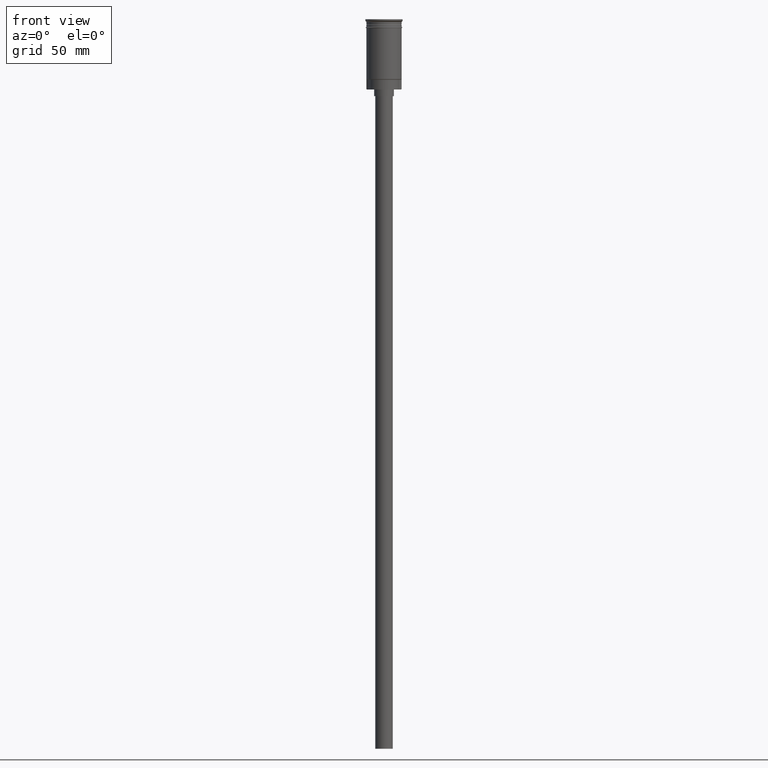
[diagram: clean part render]
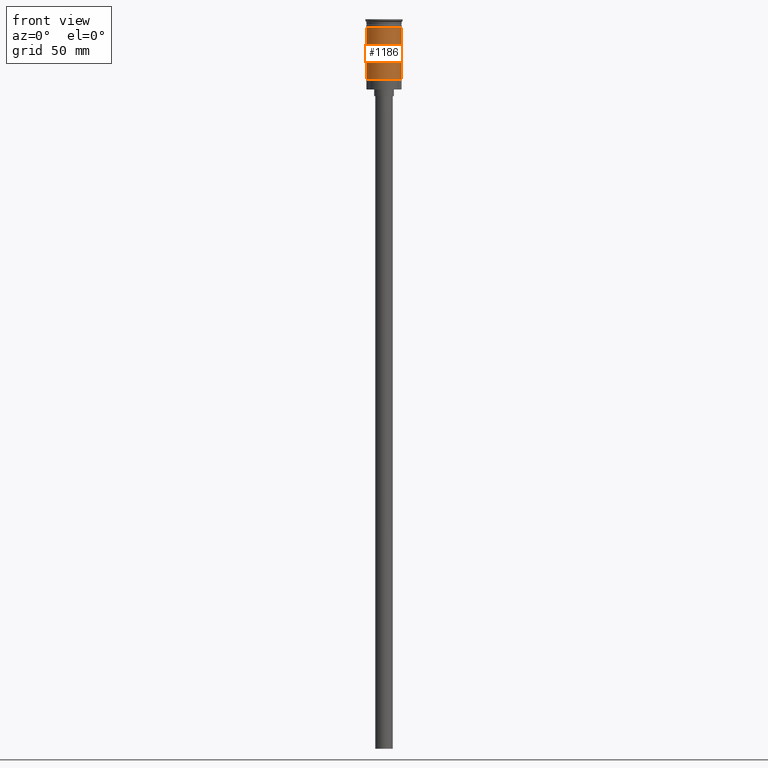
[diagram: same view with one face highlighted and labeled with its STEP entity id]
A machine part, front view. The second image highlights one B-rep face of the part: STEP entity #1186.
In plain terms, the highlighted cylindrical surface (edge-blend (fillet) strip) has radius 8 mm, axis along (-0, -0, 1).
Its self-contained STEP definition (entity closure, byte-faithful):
#32 = CARTESIAN_POINT ( 'NONE',  ( 0.000000000000000000, 0.000000000000000000, 0.000000000000000000 ) ) ;
#78 = EDGE_LOOP ( 'NONE', ( #227, #1115, #1219, #418 ) ) ;
#123 = EDGE_CURVE ( 'NONE', #1462, #853, #552, .T. ) ;
#155 = DIRECTION ( 'NONE',  ( -1.000000000000000000, 0.000000000000000000, 0.000000000000000000 ) ) ;
#163 = DIRECTION ( 'NONE',  ( -0.000000000000000000, -0.000000000000000000, 1.000000000000000000 ) ) ;
#166 = AXIS2_PLACEMENT_3D ( 'NONE', #1119, #163, #267 ) ;
#194 = CARTESIAN_POINT ( 'NONE',  ( -8.000000000000000000, 9.797174393178825657E-16, -3.999999999999997335 ) ) ;
#210 = EDGE_CURVE ( 'NONE', #1249, #268, #422, .T. ) ;
#227 = ORIENTED_EDGE ( 'NONE', *, *, #495, .F. ) ;
#267 = DIRECTION ( 'NONE',  ( 1.000000000000000000, 0.000000000000000000, 0.000000000000000000 ) ) ;
#268 = VERTEX_POINT ( 'NONE', #512 ) ;
#285 = CARTESIAN_POINT ( 'NONE',  ( -7.999999999999992895, 0.000000000000000000, -27.30000000000006466 ) ) ;
#289 = DIRECTION ( 'NONE',  ( -0.000000000000000000, -0.000000000000000000, 1.000000000000000000 ) ) ;
#396 = VECTOR ( 'NONE', #1347, 1000.000000000000000 ) ;
#418 = ORIENTED_EDGE ( 'NONE', *, *, #210, .F. ) ;
#422 = CIRCLE ( 'NONE', #166, 8.000000000000000000 ) ;
#495 = EDGE_CURVE ( 'NONE', #1462, #1249, #614, .T. ) ;
#512 = CARTESIAN_POINT ( 'NONE',  ( 8.000000000000000000, 0.000000000000000000, -3.999999999999997335 ) ) ;
#524 = DIRECTION ( 'NONE',  ( -0.000000000000000000, -0.000000000000000000, 1.000000000000000000 ) ) ;
#552 = CIRCLE ( 'NONE', #1300, 7.999999999999996447 ) ;
#611 = VECTOR ( 'NONE', #289, 1000.000000000000000 ) ;
#614 = LINE ( 'NONE', #863, #396 ) ;
#648 = FACE_OUTER_BOUND ( 'NONE', #78, .T. ) ;
#830 = CARTESIAN_POINT ( 'NONE',  ( 7.999999999999996447, 9.797174393178821713E-16, -27.30000000000006466 ) ) ;
#853 = VERTEX_POINT ( 'NONE', #830 ) ;
#863 = CARTESIAN_POINT ( 'NONE',  ( -7.999999999999996447, 9.797174393178821713E-16, 0.000000000000000000 ) ) ;
#1009 = CARTESIAN_POINT ( 'NONE',  ( 7.999999999999996447, 0.000000000000000000, 0.000000000000000000 ) ) ;
#1023 = DIRECTION ( 'NONE',  ( 1.000000000000000000, 0.000000000000000000, 0.000000000000000000 ) ) ;
#1085 = EDGE_CURVE ( 'NONE', #853, #268, #1146, .T. ) ;
#1115 = ORIENTED_EDGE ( 'NONE', *, *, #123, .T. ) ;
#1119 = CARTESIAN_POINT ( 'NONE',  ( 0.000000000000000000, 0.000000000000000000, -3.999999999999997335 ) ) ;
#1138 = CYLINDRICAL_SURFACE ( 'NONE', #1439, 7.999999999999996447 ) ;
#1146 = LINE ( 'NONE', #1009, #611 ) ;
#1186 = ADVANCED_FACE ( 'NONE', ( #648 ), #1138, .T. ) ;
#1219 = ORIENTED_EDGE ( 'NONE', *, *, #1085, .T. ) ;
#1249 = VERTEX_POINT ( 'NONE', #194 ) ;
#1260 = CARTESIAN_POINT ( 'NONE',  ( 0.000000000000000000, 0.000000000000000000, -27.30000000000006466 ) ) ;
#1300 = AXIS2_PLACEMENT_3D ( 'NONE', #1260, #1398, #155 ) ;
#1347 = DIRECTION ( 'NONE',  ( -0.000000000000000000, -0.000000000000000000, 1.000000000000000000 ) ) ;
#1398 = DIRECTION ( 'NONE',  ( -0.000000000000000000, -0.000000000000000000, 1.000000000000000000 ) ) ;
#1439 = AXIS2_PLACEMENT_3D ( 'NONE', #32, #524, #1023 ) ;
#1462 = VERTEX_POINT ( 'NONE', #285 ) ;